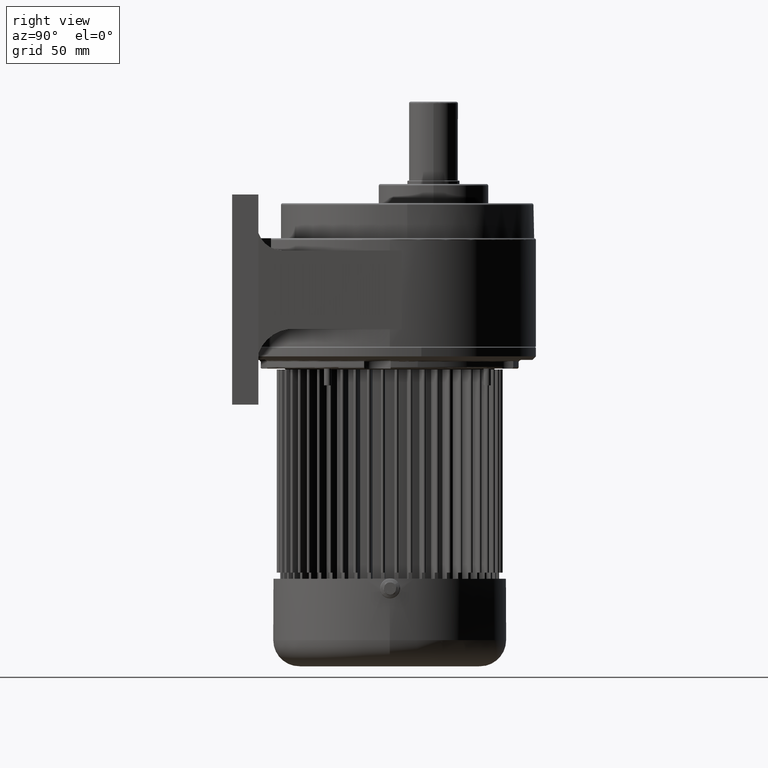
[diagram: clean part render]
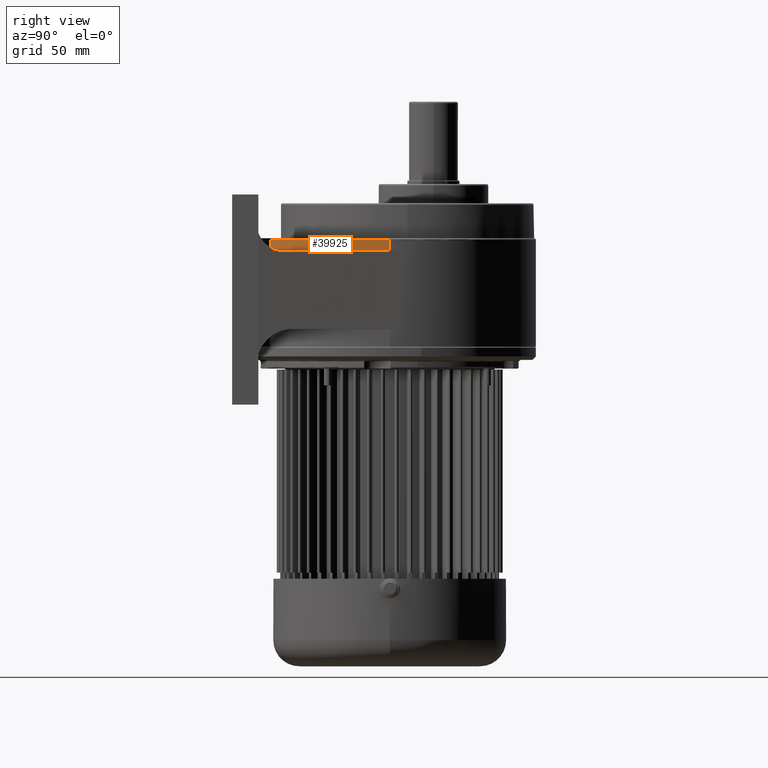
[diagram: same view with one face highlighted and labeled with its STEP entity id]
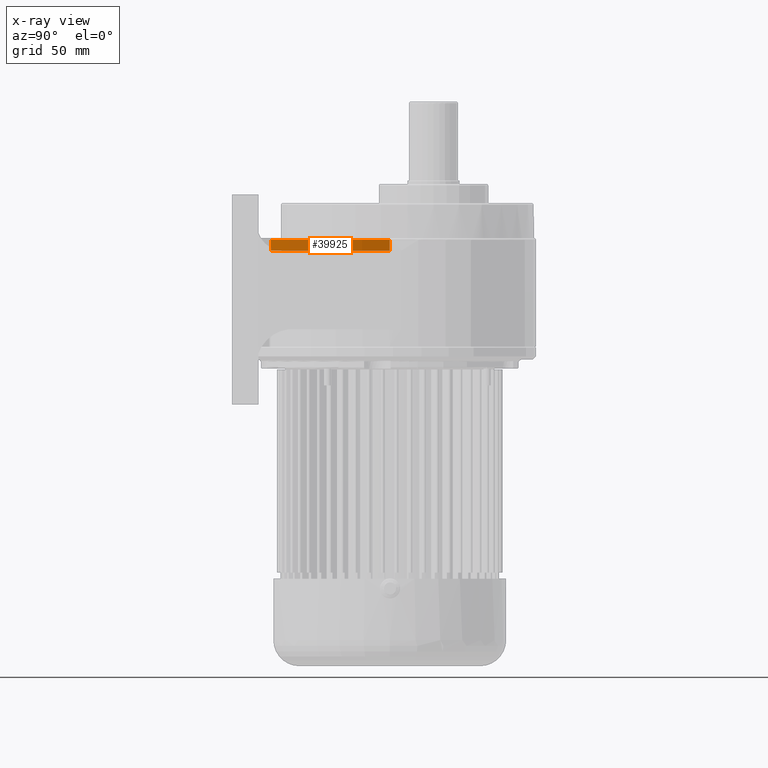
[diagram: x-ray of the same camera — body ghosted, the highlighted face saturated]
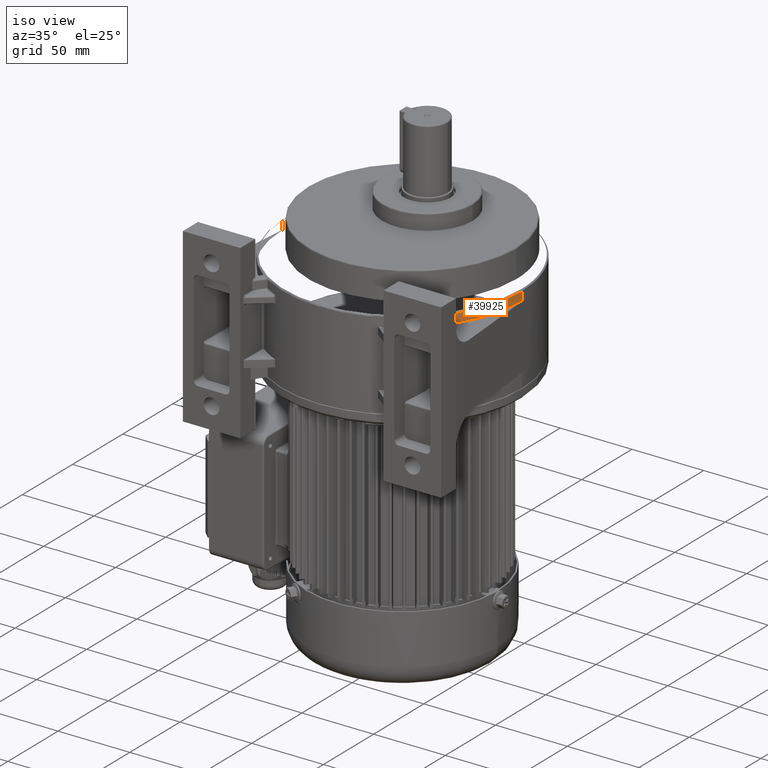
[diagram: same view with one face highlighted and labeled with its STEP entity id]
A machine part, right view. The second image highlights one B-rep face of the part: STEP entity #39925.
The next image is the same camera in x-ray: the body ghosted, the highlighted face saturated — about 0% of this face is hidden behind the body in this view.
A second angle (iso view) of the same face is appended — the face is thin or edge-on in the first view.
In plain terms, the highlighted cylindrical surface (partial cylindrical patch) has radius 83.5 mm, axis along (0, 0, -1).
Its self-contained STEP definition (entity closure, byte-faithful):
#12206 = CARTESIAN_POINT ( 'NONE',  ( -83.50000000000000000, 1.022580077288039900E-014, -55.00000000000000000 ) ) ;
#18779 = VERTEX_POINT ( 'NONE', #26879 ) ;
#22071 = EDGE_CURVE ( 'NONE', #18779, #49458, #27251, .T. ) ;
#26879 = CARTESIAN_POINT ( 'NONE',  ( -83.50000000000000000, 1.022580077288039900E-014, -61.00000000000000000 ) ) ;
#27244 = DIRECTION ( 'NONE',  ( 0.0000000000000000000, 0.0000000000000000000, 1.000000000000000000 ) ) ;
#27245 = VECTOR ( 'NONE', #27244, 1000.000000000000000 ) ;
#27246 = CARTESIAN_POINT ( 'NONE',  ( -83.50000000000000000, 1.022580077288039900E-014, -62.00000000000000000 ) ) ;
#27251 = LINE ( 'NONE', #27246, #27245 ) ;
#39854 = ORIENTED_EDGE ( 'NONE', *, *, #22071, .F. ) ;
#39922 = ORIENTED_EDGE ( 'NONE', *, *, #39969, .T. ) ;
#39925 = ADVANCED_FACE ( 'NONE', ( #55732 ), #55733, .T. ) ;
#39931 = EDGE_LOOP ( 'NONE', ( #39854, #39922, #39960, #39963 ) ) ;
#39960 = ORIENTED_EDGE ( 'NONE', *, *, #39968, .F. ) ;
#39963 = ORIENTED_EDGE ( 'NONE', *, *, #39967, .T. ) ;
#39965 = VERTEX_POINT ( 'NONE', #55788 ) ;
#39966 = VERTEX_POINT ( 'NONE', #55782 ) ;
#39967 = EDGE_CURVE ( 'NONE', #39965, #49458, #55802, .T. ) ;
#39968 = EDGE_CURVE ( 'NONE', #39965, #39966, #55836, .T. ) ;
#39969 = EDGE_CURVE ( 'NONE', #18779, #39966, #55837, .T. ) ;
#49458 = VERTEX_POINT ( 'NONE', #12206 ) ;
#55725 = DIRECTION ( 'NONE',  ( 1.000000000000000000, 0.0000000000000000000, 0.0000000000000000000 ) ) ;
#55730 = DIRECTION ( 'NONE',  ( 0.0000000000000000000, 0.0000000000000000000, 1.000000000000000000 ) ) ;
#55731 = CARTESIAN_POINT ( 'NONE',  ( 0.0000000000000000000, 0.0000000000000000000, -62.00000000000000000 ) ) ;
#55732 = FACE_OUTER_BOUND ( 'NONE', #39931, .T. ) ;
#55733 = CYLINDRICAL_SURFACE ( 'NONE', #55742, 83.50000000000000000 ) ;
#55742 = AXIS2_PLACEMENT_3D ( 'NONE', #55731, #55730, #55725 ) ;
#55778 = AXIS2_PLACEMENT_3D ( 'NONE', #55801, #55835, #55834 ) ;
#55779 = AXIS2_PLACEMENT_3D ( 'NONE', #55833, #55825, #55824 ) ;
#55782 = CARTESIAN_POINT ( 'NONE',  ( -48.73703890922744400, -67.80081886202000900, -60.99999999997862700 ) ) ;
#55788 = CARTESIAN_POINT ( 'NONE',  ( -48.73703890922744400, -67.80081886202000900, -55.00000000000682100 ) ) ;
#55801 = CARTESIAN_POINT ( 'NONE',  ( 0.0000000000000000000, 0.0000000000000000000, -55.00000000000000000 ) ) ;
#55802 = CIRCLE ( 'NONE', #55778, 83.50000000000000000 ) ;
#55824 = DIRECTION ( 'NONE',  ( 1.000000000000000000, 0.0000000000000000000, 0.0000000000000000000 ) ) ;
#55825 = DIRECTION ( 'NONE',  ( 0.0000000000000000000, 0.0000000000000000000, 1.000000000000000000 ) ) ;
#55829 = DIRECTION ( 'NONE',  ( 0.0000000000000000000, 0.0000000000000000000, -1.000000000000000000 ) ) ;
#55830 = VECTOR ( 'NONE', #55829, 1000.000000000000000 ) ;
#55831 = CARTESIAN_POINT ( 'NONE',  ( -48.73703890922744400, -67.80081886202000900, 500000.0000000000600 ) ) ;
#55833 = CARTESIAN_POINT ( 'NONE',  ( 0.0000000000000000000, 0.0000000000000000000, -61.00000000000000000 ) ) ;
#55834 = DIRECTION ( 'NONE',  ( 1.000000000000000000, 0.0000000000000000000, 0.0000000000000000000 ) ) ;
#55835 = DIRECTION ( 'NONE',  ( -0.0000000000000000000, -0.0000000000000000000, -1.000000000000000000 ) ) ;
#55836 = LINE ( 'NONE', #55831, #55830 ) ;
#55837 = CIRCLE ( 'NONE', #55779, 83.50000000000000000 ) ;